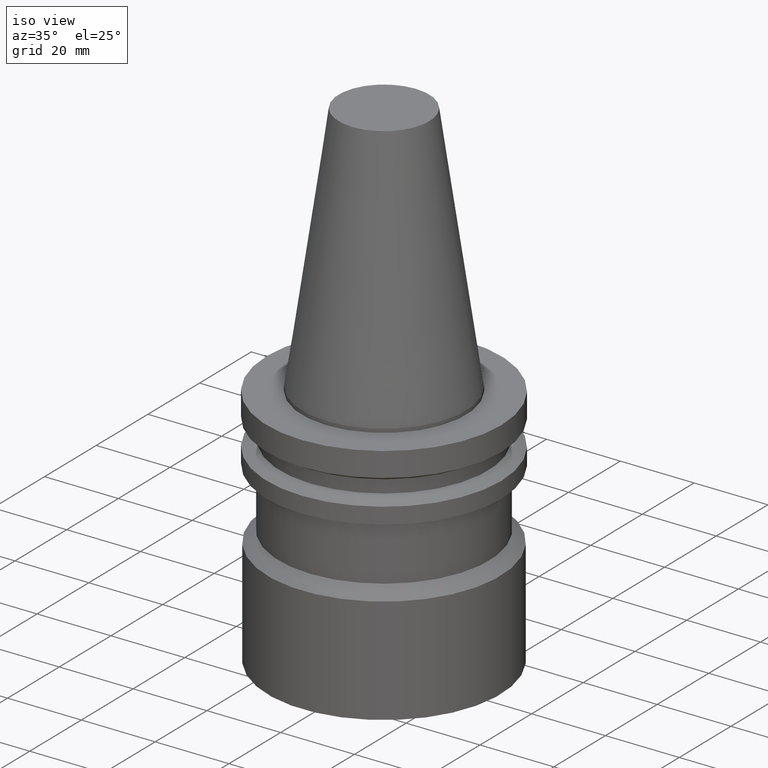
[diagram: clean part render]
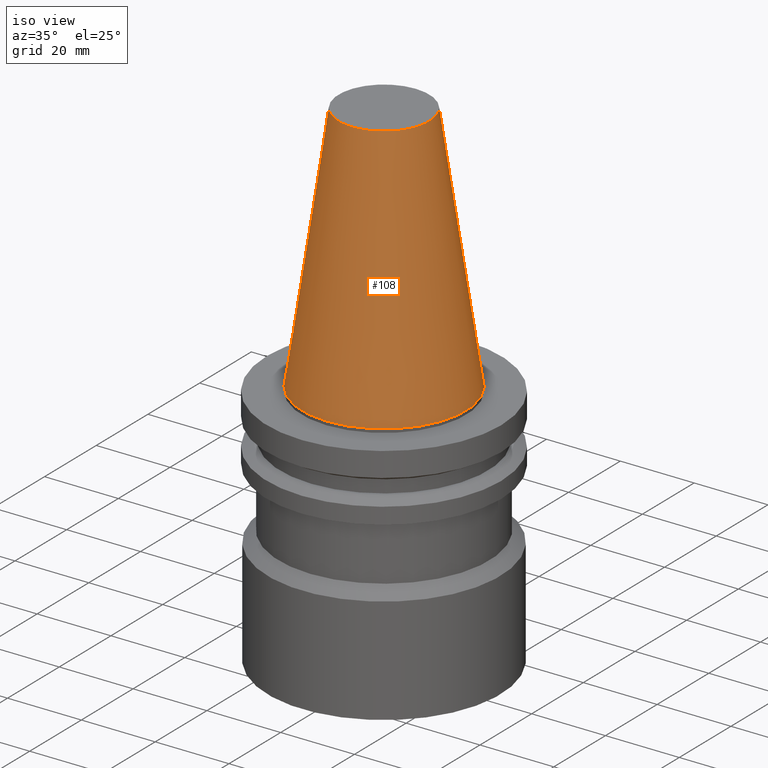
[diagram: tour spotlight — one face highlighted and labeled with its STEP entity id]
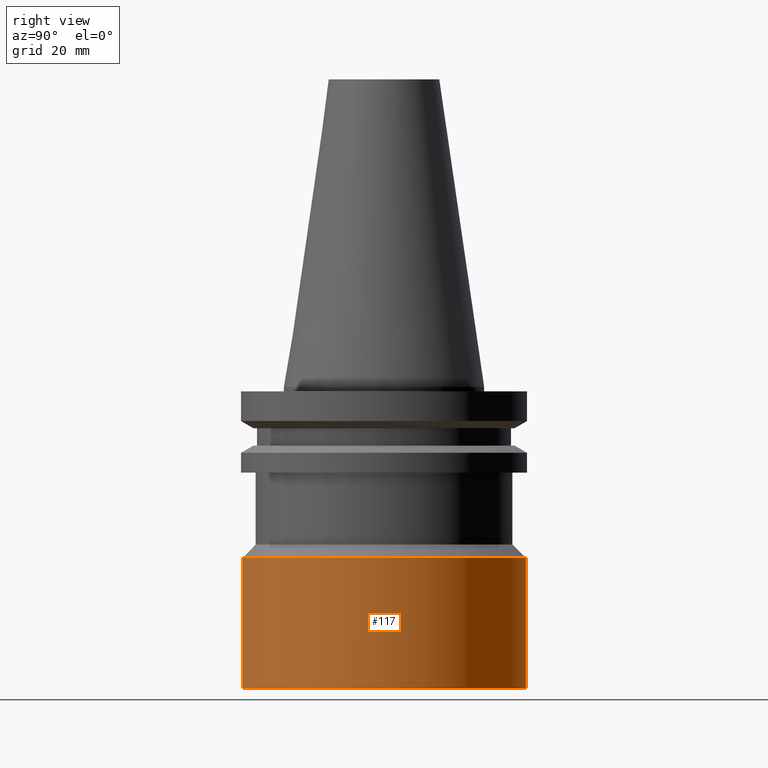
[diagram: tour spotlight — one face highlighted and labeled with its STEP entity id]
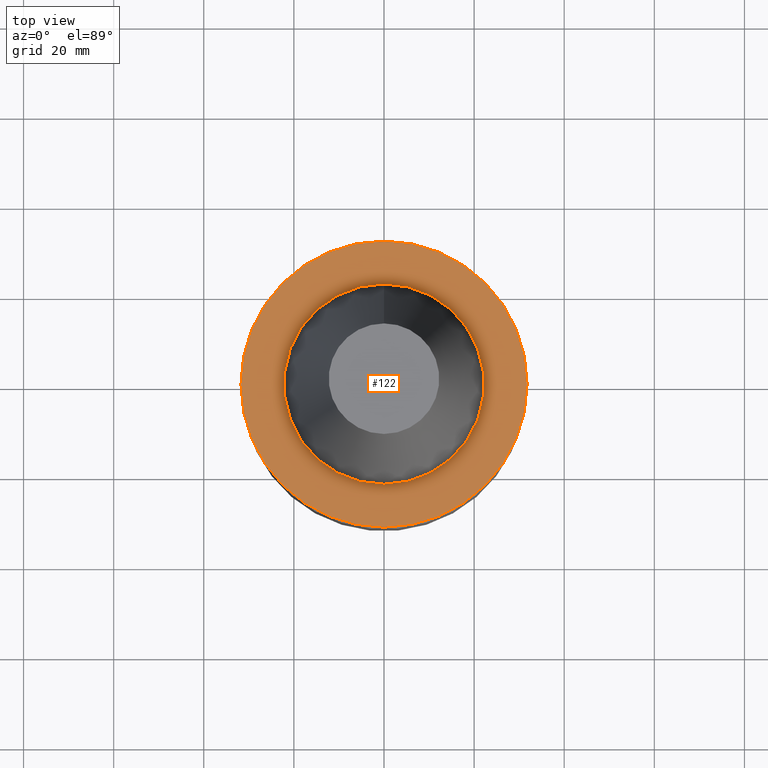
[diagram: tour spotlight — one face highlighted and labeled with its STEP entity id]
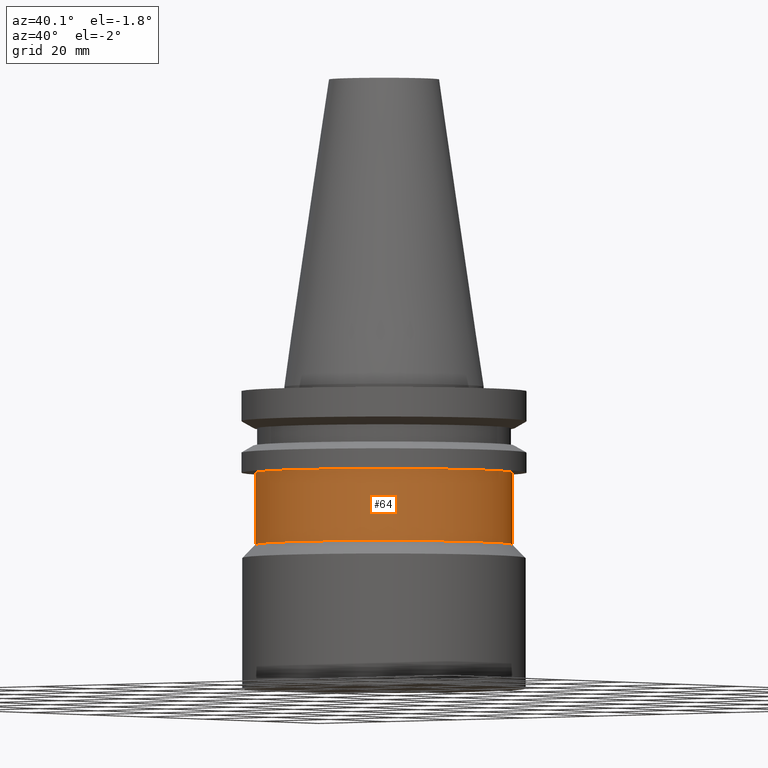
[diagram: tour spotlight — one face highlighted and labeled with its STEP entity id]
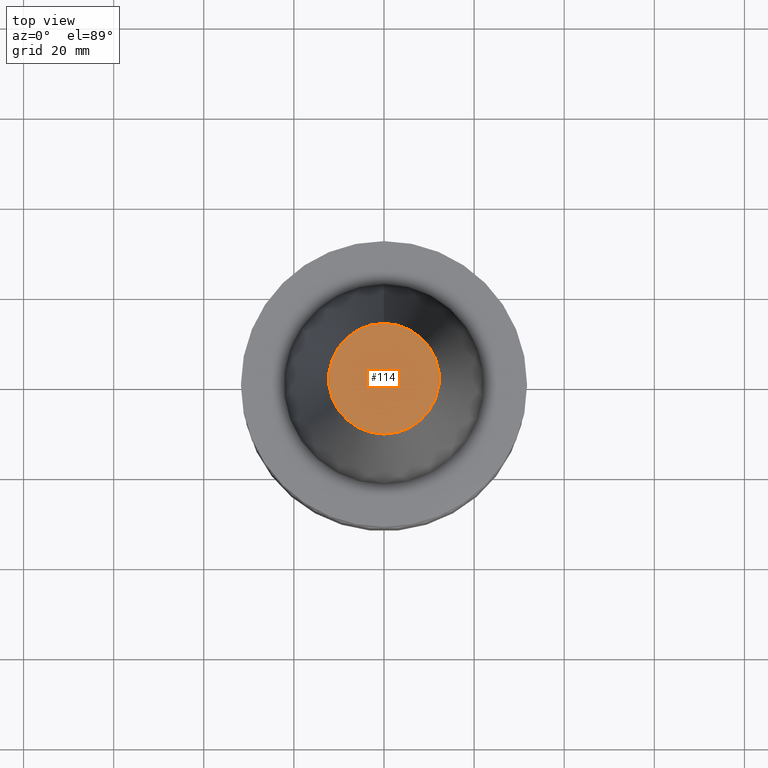
[diagram: tour spotlight — one face highlighted and labeled with its STEP entity id]
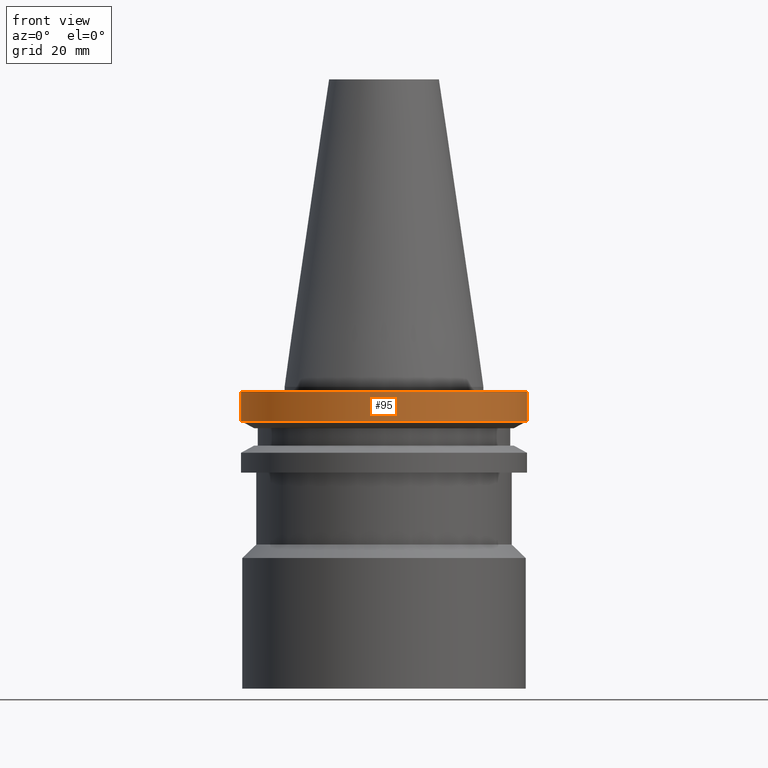
[diagram: tour spotlight — one face highlighted and labeled with its STEP entity id]
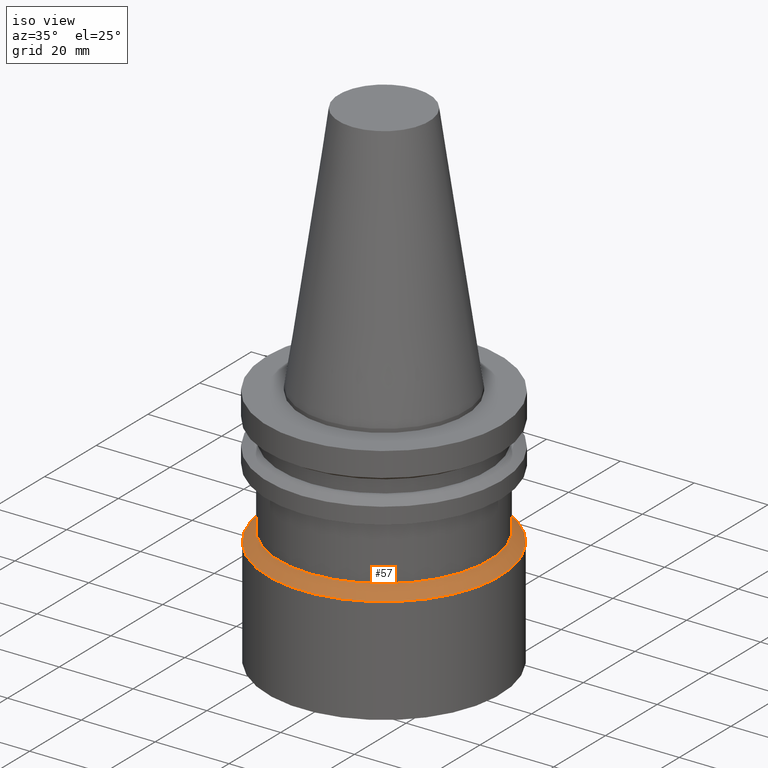
[diagram: tour spotlight — one face highlighted and labeled with its STEP entity id]
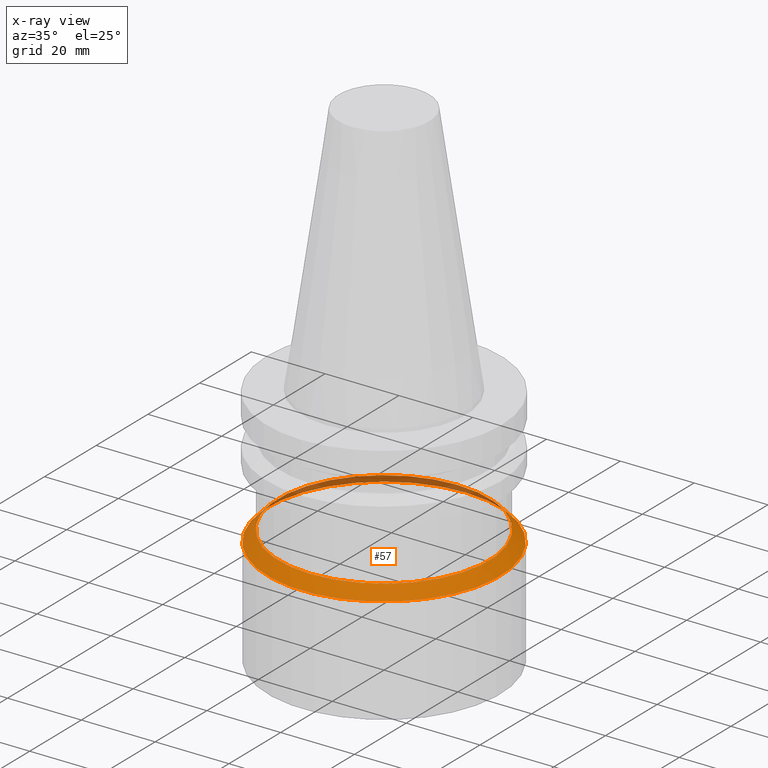
[diagram: x-ray of the same camera — body ghosted, this tour face saturated]
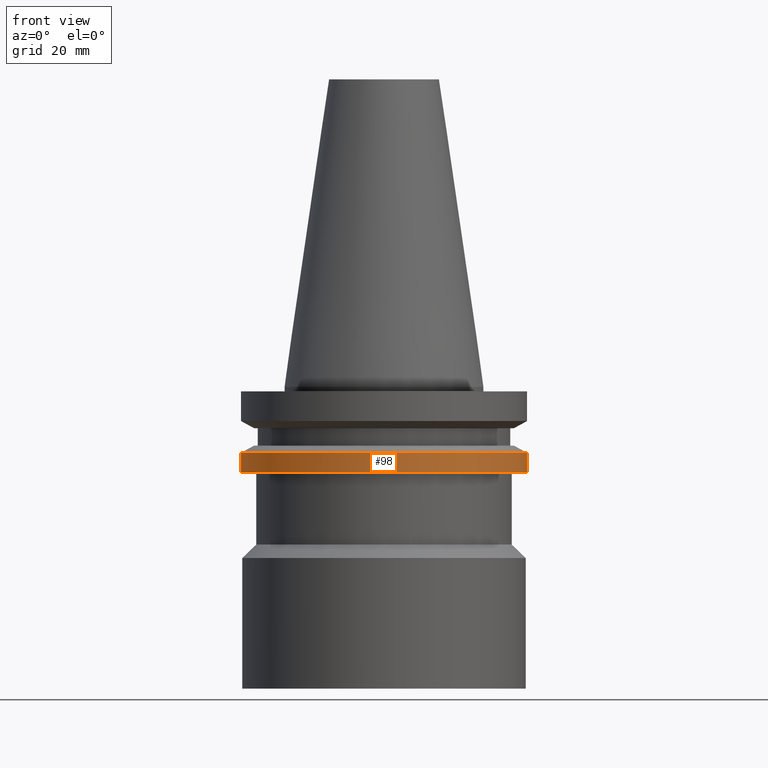
[diagram: tour spotlight — one face highlighted and labeled with its STEP entity id]
A machine part: a face-by-face anatomy tour. The part has 16 B-rep faces; the first image is the clean iso view, then the 8 largest visible faces are spotlighted one at a time (largest first), each with its STEP entity span.

Face 1 — iso view, entity #108. In plain terms, the highlighted conical surface has half-angle 8.297 deg.
Definition (entity closure, byte-faithful):
#100=EDGE_CURVE('Unnamed[1]',#220,#220,#221,.T.);
#108=ADVANCED_FACE('Unnamed[1]',(#232,#233),#234,.T.);
#130=EDGE_CURVE('Unnamed[1]',#268,#268,#269,.T.);
#220=VERTEX_POINT('',#370);
#221=CIRCLE('',#371,22.225);
#232=FACE_BOUND('',#385,.T.);
#233=FACE_BOUND('',#386,.T.);
#234=CONICAL_SURFACE('',#387,17.2484375007384,0.144812498217751);
#268=VERTEX_POINT('',#429);
#269=CIRCLE('',#430,12.2718750014768);
#370=CARTESIAN_POINT('',(-2.7394427528964E-031,22.225,2.72177751110499E-015));
#371=AXIS2_PLACEMENT_3D('',#514,#515,#516);
#385=EDGE_LOOP('',(#527));
#386=EDGE_LOOP('',(#528));
#387=AXIS2_PLACEMENT_3D('',#529,#530,#531);
#429=CARTESIAN_POINT('',(-4.17910720209034E-015,12.2718750014768,68.25));
#430=AXIS2_PLACEMENT_3D('',#570,#571,#572);
#514=CARTESIAN_POINT('',(2.08961925576987E-046,-1.69530054644809E-014,-2.07614438780041E-030));
#515=DIRECTION('',(6.12323399573676E-017,-1.22344063254663E-016,-1.0));
#516=DIRECTION('',(2.6642605422113E-033,1.0,-1.22344063254663E-016));
#527=ORIENTED_EDGE('',*,*,#100,.F.);
#528=ORIENTED_EDGE('',*,*,#130,.T.);
#529=CARTESIAN_POINT('',(-2.08955360104517E-015,-1.27780143059155E-014,34.125));
#530=DIRECTION('',(6.12323399573676E-017,-1.22344063254642E-016,-1.0));
#531=DIRECTION('',(2.66426054220868E-033,1.0,-1.22344063254642E-016));
#570=CARTESIAN_POINT('',(-4.17910720209034E-015,-8.60302314735008E-015,68.25));
#571=DIRECTION('',(6.12323399573677E-017,-1.22344063254668E-016,-1.0));
#572=DIRECTION('',(2.6642605422076E-033,1.0,-1.22344063254668E-016));

Face 2 — right view, entity #117. In plain terms, the highlighted cylindrical surface (bore or boss wall) has radius 31.5 mm, axis along (0, -0, -1).
Definition (entity closure, byte-faithful):
#61=EDGE_CURVE('Unnamed[1]',#161,#161,#162,.T.);
#105=EDGE_CURVE('Unnamed[1]',#228,#228,#229,.T.);
#117=ADVANCED_FACE('Unnamed[1]',(#246,#247),#248,.T.);
#161=VERTEX_POINT('',#296);
#162=CIRCLE('',#297,31.5);
#228=VERTEX_POINT('',#380);
#229=CIRCLE('',#381,31.5);
#246=FACE_BOUND('',#402,.T.);
#247=FACE_BOUND('',#403,.T.);
#248=CYLINDRICAL_SURFACE('',#404,31.5);
#296=CARTESIAN_POINT('',(4.10256677714362E-015,31.4999999999999,-66.9999999999998));
#297=AXIS2_PLACEMENT_3D('',#451,#452,#453);
#380=CARTESIAN_POINT('',(2.32682891837996E-015,31.5,-37.9999999999998));
#381=AXIS2_PLACEMENT_3D('',#523,#524,#525);
#402=EDGE_LOOP('',(#544));
#403=EDGE_LOOP('',(#545));
#404=AXIS2_PLACEMENT_3D('',#546,#547,#548);
#451=CARTESIAN_POINT('',(4.10256677714362E-015,-2.51500577025434E-014,-66.9999999999998));
#452=DIRECTION('',(6.12323399573677E-017,-1.22344063254662E-016,-1.0));
#453=DIRECTION('',(2.66426054220543E-033,1.0,-1.22344063254662E-016));
#523=CARTESIAN_POINT('',(2.32682891837996E-015,-2.16020798681581E-014,-37.9999999999998));
#524=DIRECTION('',(6.12323399573677E-017,-1.22344063254662E-016,-1.0));
#525=DIRECTION('',(2.66426054220543E-033,1.0,-1.22344063254662E-016));
#544=ORIENTED_EDGE('',*,*,#61,.F.);
#545=ORIENTED_EDGE('',*,*,#105,.T.);
#546=CARTESIAN_POINT('',(3.21469784776179E-015,-2.33760687853507E-014,-52.4999999999998));
#547=DIRECTION('',(6.12323399573677E-017,-1.22344063254662E-016,-1.0));
#548=DIRECTION('',(2.66426054220258E-033,1.0,-1.22344063254662E-016));

Face 3 — top view, entity #122. In plain terms, the highlighted planar face has unit normal (-0, -0, 1).
Definition (entity closure, byte-faithful):
#66=EDGE_CURVE('Unnamed[1]',#169,#169,#170,.T.);
#73=EDGE_CURVE('Unnamed[1]',#178,#178,#179,.T.);
#122=ADVANCED_FACE('Unnamed[1]',(#254,#255),#256,.T.);
#169=VERTEX_POINT('',#306);
#170=CIRCLE('',#307,31.75);
#178=VERTEX_POINT('',#317);
#179=CIRCLE('',#318,22.225);
#254=FACE_OUTER_BOUND('',#412,.T.);
#255=FACE_BOUND('',#413,.T.);
#256=PLANE('',#414);
#306=CARTESIAN_POINT('',(6.12323399573673E-017,31.75,-0.999999999999996));
#307=AXIS2_PLACEMENT_3D('',#460,#461,#462);
#317=CARTESIAN_POINT('',(6.12323399573674E-017,22.225,-0.999999999999997));
#318=AXIS2_PLACEMENT_3D('',#467,#468,#469);
#412=EDGE_LOOP('',(#553));
#413=EDGE_LOOP('',(#554));
#414=AXIS2_PLACEMENT_3D('',#555,#556,#557);
#460=CARTESIAN_POINT('',(6.12323399573668E-017,-1.70753495277356E-014,-0.999999999999986));
#461=DIRECTION('',(6.12323399573677E-017,-1.22344063254663E-016,-1.0));
#462=DIRECTION('',(2.66426054220605E-033,1.0,-1.22344063254663E-016));
#467=CARTESIAN_POINT('',(6.12323399573677E-017,-1.70753495277356E-014,-1.0));
#468=DIRECTION('',(6.12323399573676E-017,-1.22344063254663E-016,-1.0));
#469=DIRECTION('',(2.6642605422113E-033,1.0,-1.22344063254663E-016));
#553=ORIENTED_EDGE('',*,*,#66,.F.);
#554=ORIENTED_EDGE('',*,*,#73,.T.);
#555=CARTESIAN_POINT('',(6.12323399573673E-017,26.9875,-0.999999999999997));
#556=DIRECTION('',(-6.12323399573677E-017,-1.22464679914735E-016,1.0));
#557=DIRECTION('',(1.23259516440783E-032,-1.0,-1.22464679914735E-016));

Face 4 — auxiliary view, entity #64. In plain terms, the highlighted cylindrical surface (bore or boss wall) has radius 28.5 mm, axis along (0, -0, -1).
Definition (entity closure, byte-faithful):
#64=ADVANCED_FACE('Unnamed[1]',(#165,#166),#167,.T.);
#88=EDGE_CURVE('Unnamed[1]',#201,#201,#202,.T.);
#90=EDGE_CURVE('Unnamed[1]',#204,#204,#205,.T.);
#165=FACE_BOUND('',#301,.T.);
#166=FACE_BOUND('',#302,.T.);
#167=CYLINDRICAL_SURFACE('',#303,28.5);
#201=VERTEX_POINT('',#346);
#202=CIRCLE('',#347,28.5);
#204=VERTEX_POINT('',#350);
#205=CIRCLE('',#351,28.5000000000001);
#301=EDGE_LOOP('',(#455));
#302=EDGE_LOOP('',(#456));
#303=AXIS2_PLACEMENT_3D('',#457,#458,#459);
#346=CARTESIAN_POINT('',(1.16647607618786E-015,28.5,-19.0500000000001));
#347=AXIS2_PLACEMENT_3D('',#493,#494,#495);
#350=CARTESIAN_POINT('',(2.14313189850787E-015,28.5,-35.0));
#351=AXIS2_PLACEMENT_3D('',#496,#497,#498);
#455=ORIENTED_EDGE('',*,*,#90,.F.);
#456=ORIENTED_EDGE('',*,*,#88,.T.);
#457=CARTESIAN_POINT('',(1.65480398734786E-015,-2.02593537739382E-014,-27.025));
#458=DIRECTION('',(6.12323399573677E-017,-1.22344063254646E-016,-1.0));
#459=DIRECTION('',(2.66426054220332E-033,1.0,-1.22344063254646E-016));
#493=CARTESIAN_POINT('',(1.16647607618786E-015,-1.92836598694823E-014,-19.0500000000001));
#494=DIRECTION('',(6.12323399573677E-017,-1.22344063254646E-016,-1.0));
#495=DIRECTION('',(2.66426054220333E-033,1.0,-1.22344063254646E-016));
#496=CARTESIAN_POINT('',(2.14313189850787E-015,-2.12350476783941E-014,-35.0));
#497=DIRECTION('',(6.12323399573677E-017,-1.22344063254646E-016,-1.0));
#498=DIRECTION('',(2.66426054220647E-033,1.0,-1.22344063254646E-016));

Face 5 — top view, entity #114. In plain terms, the highlighted planar face has unit normal (-0, 0, 1).
Definition (entity closure, byte-faithful):
#114=ADVANCED_FACE('Unnamed[1]',(#242),#243,.T.);
#130=EDGE_CURVE('Unnamed[1]',#268,#268,#269,.T.);
#242=FACE_OUTER_BOUND('',#397,.T.);
#243=PLANE('',#398);
#268=VERTEX_POINT('',#429);
#269=CIRCLE('',#430,12.2718750014768);
#397=EDGE_LOOP('',(#539));
#398=AXIS2_PLACEMENT_3D('',#540,#541,#542);
#429=CARTESIAN_POINT('',(-4.17910720209034E-015,12.2718750014768,68.25));
#430=AXIS2_PLACEMENT_3D('',#570,#571,#572);
#539=ORIENTED_EDGE('',*,*,#130,.F.);
#540=CARTESIAN_POINT('',(-4.17910720209034E-015,6.13593750073841,68.25));
#541=DIRECTION('',(-6.12323399573677E-017,1.03553723205811E-015,1.0));
#542=DIRECTION('',(-5.8581215101125E-032,-1.0,1.03553723205811E-015));
#570=CARTESIAN_POINT('',(-4.17910720209034E-015,-8.60302314735008E-015,68.25));
#571=DIRECTION('',(6.12323399573677E-017,-1.22344063254668E-016,-1.0));
#572=DIRECTION('',(2.6642605422076E-033,1.0,-1.22344063254668E-016));

Face 6 — front view, entity #95. In plain terms, the highlighted cylindrical surface (bore or boss wall) has radius 31.75 mm, axis along (0, -0, -1).
Definition (entity closure, byte-faithful):
#66=EDGE_CURVE('Unnamed[1]',#169,#169,#170,.T.);
#92=EDGE_CURVE('Unnamed[1]',#207,#207,#208,.T.);
#95=ADVANCED_FACE('Unnamed[1]',(#211,#212),#213,.T.);
#169=VERTEX_POINT('',#306);
#170=CIRCLE('',#307,31.75);
#207=VERTEX_POINT('',#354);
#208=CIRCLE('',#355,31.75);
#211=FACE_BOUND('',#359,.T.);
#212=FACE_BOUND('',#360,.T.);
#213=CYLINDRICAL_SURFACE('',#361,31.75);
#306=CARTESIAN_POINT('',(6.12323399573673E-017,31.75,-0.999999999999996));
#307=AXIS2_PLACEMENT_3D('',#460,#461,#462);
#354=CARTESIAN_POINT('',(4.64988177975518E-016,31.75,-7.59383323092439));
#355=AXIS2_PLACEMENT_3D('',#499,#500,#501);
#359=EDGE_LOOP('',(#503));
#360=EDGE_LOOP('',(#504));
#361=AXIS2_PLACEMENT_3D('',#505,#506,#507);
#460=CARTESIAN_POINT('',(6.12323399573668E-017,-1.70753495277356E-014,-0.999999999999986));
#461=DIRECTION('',(6.12323399573677E-017,-1.22344063254663E-016,-1.0));
#462=DIRECTION('',(2.66426054220605E-033,1.0,-1.22344063254663E-016));
#499=CARTESIAN_POINT('',(4.64988177975518E-016,-1.78820658776305E-014,-7.59383323092439));
#500=DIRECTION('',(6.12323399573677E-017,-1.22344063254663E-016,-1.0));
#501=DIRECTION('',(2.66426054220605E-033,1.0,-1.22344063254663E-016));
#503=ORIENTED_EDGE('',*,*,#92,.F.);
#504=ORIENTED_EDGE('',*,*,#66,.T.);
#505=CARTESIAN_POINT('',(2.63110258966442E-016,-1.7478707702683E-014,-4.29691661546219));
#506=DIRECTION('',(6.12323399573677E-017,-1.22344063254663E-016,-1.0));
#507=DIRECTION('',(2.66426054220605E-033,1.0,-1.22344063254663E-016));

Face 7 — iso view, entity #57. An x-ray twin of the same camera follows (body ghosted, this face saturated) — the face is partly hidden behind the body. In plain terms, the highlighted conical surface has half-angle 45 deg.
Definition (entity closure, byte-faithful):
#57=ADVANCED_FACE('Unnamed[1]',(#154,#155),#156,.T.);
#90=EDGE_CURVE('Unnamed[1]',#204,#204,#205,.T.);
#105=EDGE_CURVE('Unnamed[1]',#228,#228,#229,.T.);
#154=FACE_BOUND('',#287,.T.);
#155=FACE_BOUND('',#288,.T.);
#156=CONICAL_SURFACE('',#289,30.0,0.78539816339747);
#204=VERTEX_POINT('',#350);
#205=CIRCLE('',#351,28.5000000000001);
#228=VERTEX_POINT('',#380);
#229=CIRCLE('',#381,31.5);
#287=EDGE_LOOP('',(#443));
#288=EDGE_LOOP('',(#444));
#289=AXIS2_PLACEMENT_3D('',#445,#446,#447);
#350=CARTESIAN_POINT('',(2.14313189850787E-015,28.5,-35.0));
#351=AXIS2_PLACEMENT_3D('',#496,#497,#498);
#380=CARTESIAN_POINT('',(2.32682891837996E-015,31.5,-37.9999999999998));
#381=AXIS2_PLACEMENT_3D('',#523,#524,#525);
#443=ORIENTED_EDGE('',*,*,#105,.F.);
#444=ORIENTED_EDGE('',*,*,#90,.T.);
#445=CARTESIAN_POINT('',(2.23498040844391E-015,-2.14185637732761E-014,-36.4999999999999));
#446=DIRECTION('',(6.12323399573677E-017,-1.22344063254654E-016,-1.0));
#447=DIRECTION('',(2.66426054220742E-033,1.0,-1.22344063254654E-016));
#496=CARTESIAN_POINT('',(2.14313189850787E-015,-2.12350476783941E-014,-35.0));
#497=DIRECTION('',(6.12323399573677E-017,-1.22344063254646E-016,-1.0));
#498=DIRECTION('',(2.66426054220647E-033,1.0,-1.22344063254646E-016));
#523=CARTESIAN_POINT('',(2.32682891837996E-015,-2.16020798681581E-014,-37.9999999999998));
#524=DIRECTION('',(6.12323399573677E-017,-1.22344063254662E-016,-1.0));
#525=DIRECTION('',(2.66426054220543E-033,1.0,-1.22344063254662E-016));

Face 8 — front view, entity #98. In plain terms, the highlighted cylindrical surface (bore or boss wall) has radius 31.75 mm, axis along (0, -0, -1).
Definition (entity closure, byte-faithful):
#86=EDGE_CURVE('Unnamed[1]',#198,#198,#199,.T.);
#98=ADVANCED_FACE('Unnamed[1]',(#216,#217),#218,.T.);
#119=EDGE_CURVE('Unnamed[1]',#250,#250,#251,.T.);
#198=VERTEX_POINT('',#342);
#199=CIRCLE('',#343,31.75);
#216=FACE_BOUND('',#365,.T.);
#217=FACE_BOUND('',#366,.T.);
#218=CYLINDRICAL_SURFACE('',#367,31.75);
#250=VERTEX_POINT('',#407);
#251=CIRCLE('',#408,31.75);
#342=CARTESIAN_POINT('',(1.16647607618786E-015,31.75,-19.05));
#343=AXIS2_PLACEMENT_3D('',#490,#491,#492);
#365=EDGE_LOOP('',(#509));
#366=EDGE_LOOP('',(#510));
#367=AXIS2_PLACEMENT_3D('',#511,#512,#513);
#407=CARTESIAN_POINT('',(8.96819062676333E-016,31.75,-14.6461667690755));
#408=AXIS2_PLACEMENT_3D('',#549,#550,#551);
#490=CARTESIAN_POINT('',(1.16647607618786E-015,-1.92836598694823E-014,-19.05));
#491=DIRECTION('',(6.12323399573677E-017,-1.22344063254663E-016,-1.0));
#492=DIRECTION('',(2.66426054220323E-033,1.0,-1.22344063254663E-016));
#509=ORIENTED_EDGE('',*,*,#86,.F.);
#510=ORIENTED_EDGE('',*,*,#119,.T.);
#511=CARTESIAN_POINT('',(1.03164756943209E-015,-1.90142684437986E-014,-16.8480833845378));
#512=DIRECTION('',(6.12323399573677E-017,-1.22344063254663E-016,-1.0));
#513=DIRECTION('',(2.66426054220605E-033,1.0,-1.22344063254663E-016));
#549=CARTESIAN_POINT('',(8.96819062676333E-016,-1.8744877018115E-014,-14.6461667690755));
#550=DIRECTION('',(6.12323399573677E-017,-1.22344063254663E-016,-1.0));
#551=DIRECTION('',(2.66426054220605E-033,1.0,-1.22344063254663E-016));